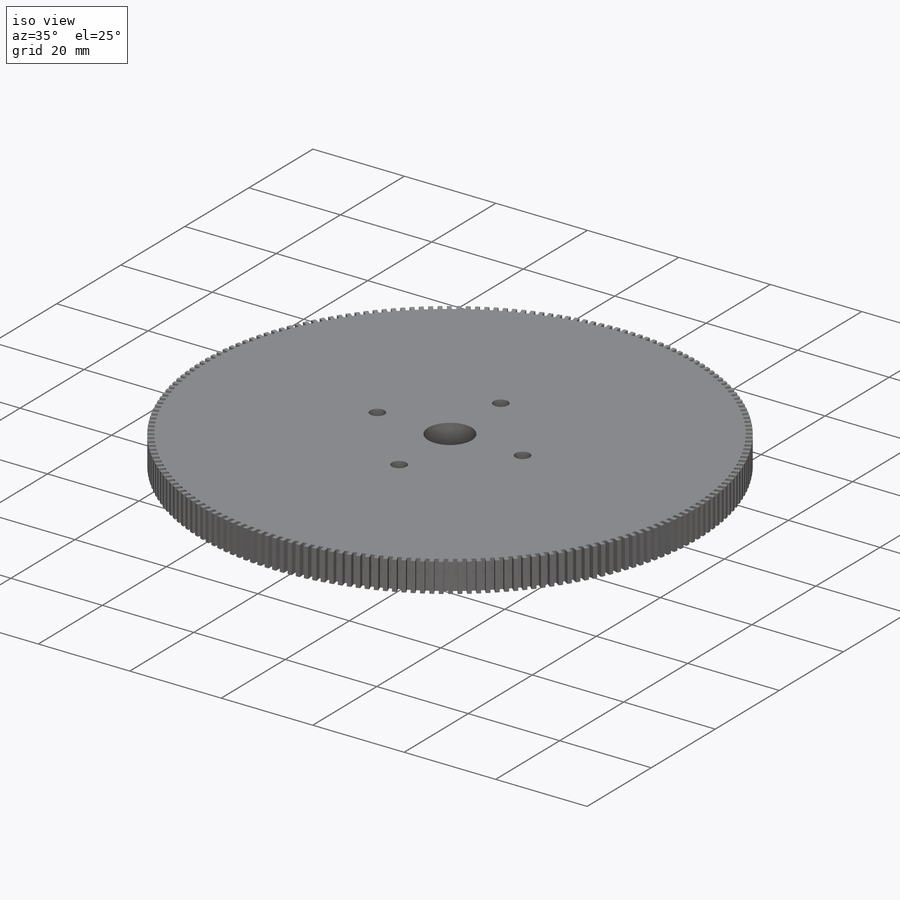
[diagram: iso view]
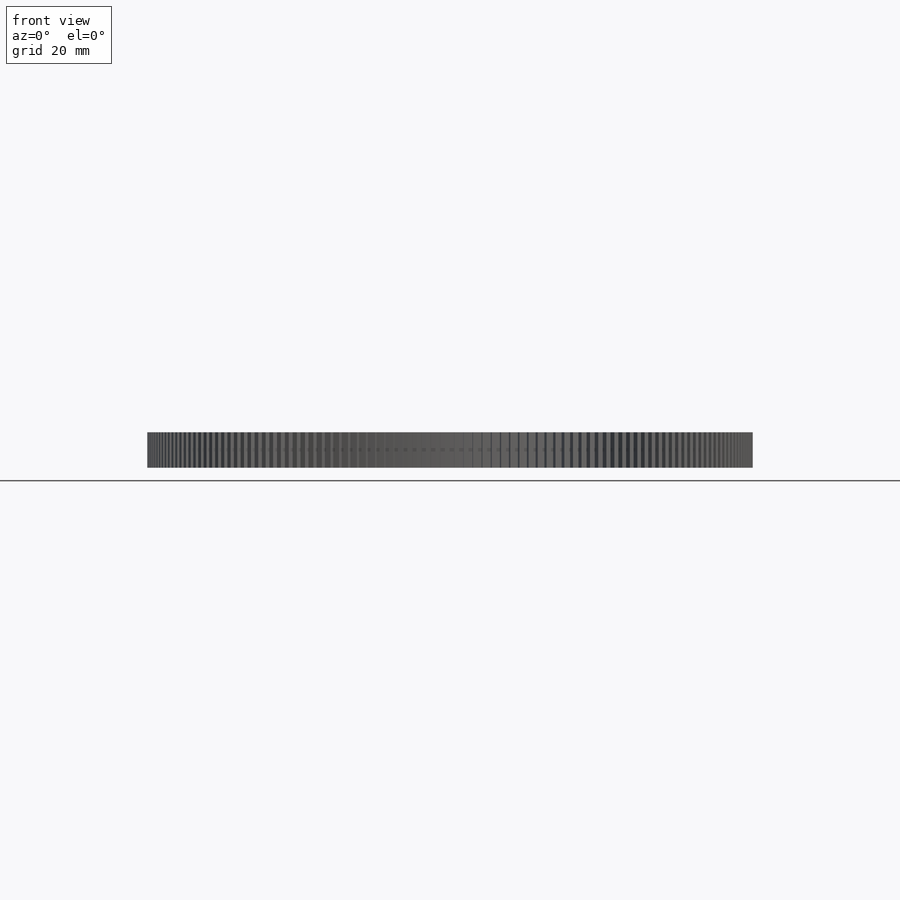
[diagram: front view]
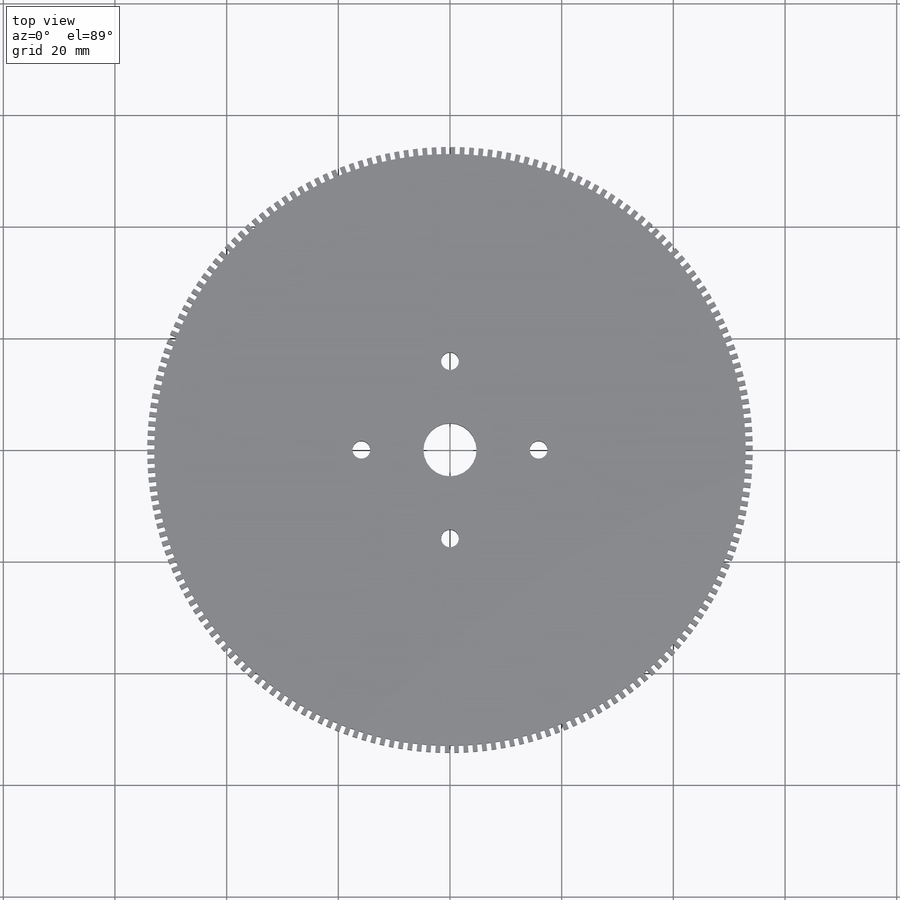
[diagram: top view]
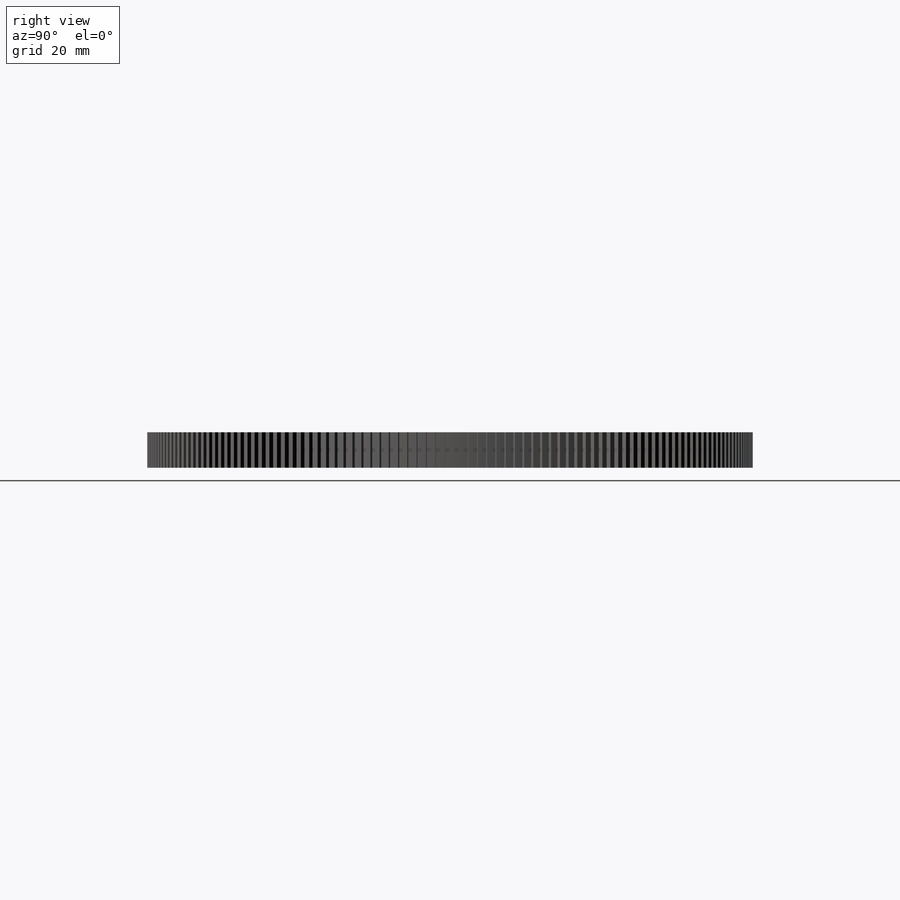
[diagram: right view]
SOLIDWORKS PART (.sldprt)
format: sldprt  version: not decoded by parser v0  size: 1,207,296 bytes
history: native  units: mm
features: sketch x5, plane x3, thread x3, cut_extrude x2, material x1, extrude x1, hole x1 (+8 scaffold rows collapsed)
feature tree (24):
  scaffold x8  (default folders/planes/origin — collapsed)
  material  "Material <not specified>"
  plane  "前基準面"
  plane  "上基準面"
  plane  "右基準面"
  sketch  "草圖1"  dims[D1=108.458mm]
  extrude  "填料-伸長1"  Depth=6.35mm
  sketch  "草圖2"  dims[c1.D1=9.525mm c1.D2=3.175mm c1.D3=3.175mm c1.D4=3.175mm c1.D5=3.175mm c1.D6=3.175mm c1.D7=3.175mm c1.D8=3.175mm c1.D9=3.175mm c2.D6=15.875mm c2.D7=15.875mm c2.D8=15.875mm c2.D9=15.875mm]
  cut_extrude  "除料-伸長1"  Depth=6.35mm
  sketch  "草圖4"  dims[c1.D1=52.959mm c1.D4=108.458mm c2.D1=108.458mm c2.D2=~67.439809mm c3.D2=~0.44335deg c3.D3=~67.439809mm c4.D3=~0.44335deg c4.D4=0.635mm c4.D1=1.27mm c5.D4=202.0]
  cut_extrude  "除料-伸長2"  Depth=6.35mm
  hole  "#10-32 螺紋孔1"  [1 undecoded]
  sketch  "草圖7"  dims[D1=46.0mm D2=38.0mm D3=30.0mm]
  sketch  "草圖6"  dims[hole-wizard template sketch: 46 standard entries collapsed; hole parameters kept: c15.螺孔鑽直徑=4.0386mm c15.螺孔鑽深度=13.716mm c15.D3=~14.816244mm c15.導頭角度=118.0deg]
  thread  "鑽孔螺紋1"  Diameter=6.35mm  [1 undecoded]
  thread  "鑽孔螺紋2"  Diameter=6.35mm  [1 undecoded]
  thread  "鑽孔螺紋3"  Diameter=6.35mm  [1 undecoded]
decode coverage: 11 of 12 modeling features carry decoded parameters
note: ~ marks probable driven/reference dimensions
note: 4 parameter values undecoded
note: suppression state not decoded; provenance and decode notes live in map.json
